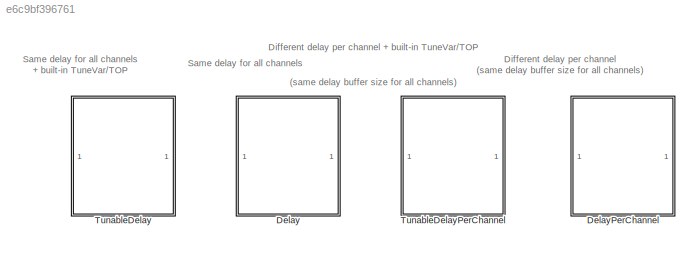
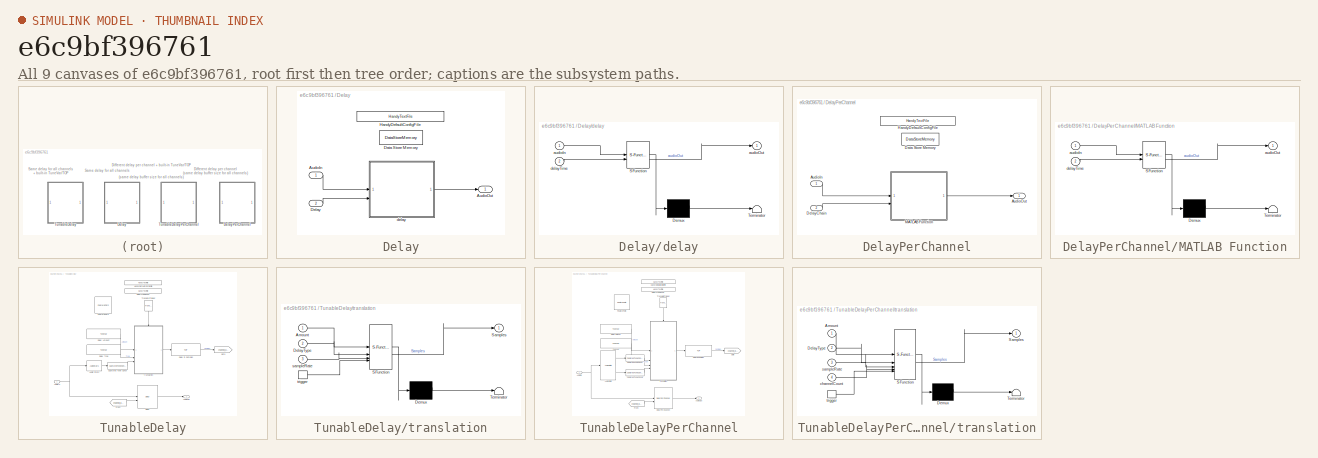
[diagram: thumbnail index - all 9 canvases of the model, root first then tree order]
MODEL slx_e6c9bf396761
KIND library
CONFIG AbsTol = auto
CONFIG EnableMultiTasking = off
CONFIG FixedStep = auto
CONFIG MaxStep = auto
CONFIG MinStep = auto
CONFIG RelTol = 1e-3
CONFIG SampleTimeConstraint = Unconstrained
CONFIG SolverName = VariableStepAuto
CONFIG StartTime = 0.0
CONFIG StopTime = 10.0
BLOCK [SubSystem] Delay
BLOCK [Inport] Delay/AudioIn
BLOCK [Outport] Delay/AudioOut
  VectorParamsAs1DForOutWhenUnconnected = off
BLOCK [DataStoreMemory] Delay/Data Store Memory
  DataStoreName = delayBuffer
  InitialValue = Config.DlgInitialState
  OutDataTypeStr = single
  ReadBeforeWriteMsg = warning
  ShowAdditionalParam = off
  SignalType = real
  WriteAfterReadMsg = warning
  WriteAfterWriteMsg = warning
BLOCK [Inport] Delay/Delay
  Port = 2
BLOCK [Reference] Delay/HandyDefaultConfigFile  REF=HandyTextFile/HandyTextFile
  SourceBlock = HandyTextFile/HandyTextFile
  SourceProductName = Bose Talaria
  SourceType = Talaria Handy Text File
BLOCK [SubSystem] Delay/delay
  ErrorFcn = Stateflow.Translate.translate
  PermitHierarchicalResolution = ExplicitOnly
  SFBlockType = MATLAB Function
  TreatAsAtomicUnit = on
BLOCK [Demux] Delay/delay/ Demux 
  Outputs = 1
BLOCK [S-Function] Delay/delay/ SFunction 
  EnableBusSupport = off
  FunctionName = sf_sfun
  Parameters = maxDelayTime
  PortCounts = [2 2]
  SFcnIsStateOwnerBlock = off
  SFunctionDeploymentMode = off
  Tag = Stateflow S-Function 3
BLOCK [Terminator] Delay/delay/ Terminator 
BLOCK [Inport] Delay/delay/audioIn
BLOCK [Outport] Delay/delay/audioOut
  VectorParamsAs1DForOutWhenUnconnected = off
BLOCK [Inport] Delay/delay/delayTime
  Port = 2
BLOCK [SubSystem] DelayPerChannel
BLOCK [Inport] DelayPerChannel/AudioIn
BLOCK [Outport] DelayPerChannel/AudioOut
  VectorParamsAs1DForOutWhenUnconnected = off
BLOCK [DataStoreMemory] DelayPerChannel/Data Store Memory
  DataStoreName = delayBuffer
  InitialValue = Config.DlgInitialState
  OutDataTypeStr = single
  ReadBeforeWriteMsg = warning
  ShowAdditionalParam = off
  SignalType = real
  WriteAfterReadMsg = warning
  WriteAfterWriteMsg = warning
BLOCK [Inport] DelayPerChannel/DelayChain
  Port = 2
BLOCK [Reference] DelayPerChannel/HandyDefaultConfigFile  REF=HandyTextFile/HandyTextFile
  SourceBlock = HandyTextFile/HandyTextFile
  SourceProductName = Bose Talaria
  SourceType = Talaria Handy Text File
BLOCK [SubSystem] DelayPerChannel/MATLAB Function
  ErrorFcn = Stateflow.Translate.translate
  PermitHierarchicalResolution = ExplicitOnly
  SFBlockType = MATLAB Function
  TreatAsAtomicUnit = on
BLOCK [Demux] DelayPerChannel/MATLAB Function/ Demux 
  Outputs = 1
BLOCK [S-Function] DelayPerChannel/MATLAB Function/ SFunction 
  EnableBusSupport = off
  FunctionName = sf_sfun
  Parameters = maxDelayTime
  PortCounts = [2 2]
  SFcnIsStateOwnerBlock = off
  SFunctionDeploymentMode = off
  Tag = Stateflow S-Function 5
BLOCK [Terminator] DelayPerChannel/MATLAB Function/ Terminator 
BLOCK [Inport] DelayPerChannel/MATLAB Function/audioIn
BLOCK [Outport] DelayPerChannel/MATLAB Function/audioOut
  VectorParamsAs1DForOutWhenUnconnected = off
BLOCK [Inport] DelayPerChannel/MATLAB Function/delayTime
  Port = 2
BLOCK [SubSystem] TunableDelay
BLOCK [Reference] TunableDelay/Audio Stats  REF=AudioStats/AudioStats
  SourceBlock = AudioStats/AudioStats
  SourceProductName = Bose Talaria
  SourceType = Talaria Audio Statistics
BLOCK [Inport] TunableDelay/AudioIn
BLOCK [Outport] TunableDelay/AudioOut
  VectorParamsAs1DForOutWhenUnconnected = off
BLOCK [Reference] TunableDelay/Captured Tune Const  REF=TuneVar/CapturedTuneConst
  SourceBlock = TuneVar/CapturedTuneConst
  SourceProductName = Bose Talaria
  SourceType = Talaria Captured Constant
BLOCK [Reference] TunableDelay/Delay  REF=$bdroot/Delay
  SourceBlock = $bdroot/Delay
  SourceType = Blocklib Delay
BLOCK [Reference] TunableDelay/Delay Amount  REF=TuneVar/TuneVar
  SourceBlock = TuneVar/TuneVar
  SourceProductName = Bose Talaria
  SourceType = Talaria Tune Variable
BLOCK [Reference] TunableDelay/Delay Type  REF=TuneVar/TuneVar
  Description = Indicates how to interpret the delay amount\n1 == InSamples\n2 == InMilliseconds\n(See DelayTypeEnum)
  SourceBlock = TuneVar/TuneVar
  SourceProductName = Bose Talaria
  SourceType = Talaria Tune Variable
BLOCK [Reference] TunableDelay/Delay in Samples  REF=TOP/TOP
  SourceBlock = TOP/TOP
  SourceProductName = Bose Talaria
  SourceType = Talaria Target Overlay Parameter
BLOCK [Reference] TunableDelay/DelayTypeEnum  REF=HandyTextFile/HandyTextFile
  SourceBlock = HandyTextFile/HandyTextFile
  SourceProductName = Bose Talaria
  SourceType = Talaria Handy Text File
BLOCK [Reference] TunableDelay/FeaturePath  REF=FeaturePath/FeaturePath
  SourceBlock = FeaturePath/FeaturePath
  SourceProductName = Bose Talaria
  SourceType = Talaria Feature Path
BLOCK [From] TunableDelay/From
  GotoTag = channel_delay
BLOCK [Goto] TunableDelay/Goto
  GotoTag = channel_delay
BLOCK [Reference] TunableDelay/HandyDefaultConfigFile  REF=HandyTextFile/HandyTextFile
  SourceBlock = HandyTextFile/HandyTextFile
  SourceProductName = Bose Talaria
  SourceType = Talaria Handy Text File
BLOCK [Reference] TunableDelay/TranslateTrigger  REF=TuneVar/TranslateTrigger
  NameLocation = left
  SourceBlock = TuneVar/TranslateTrigger
  SourceProductName = Bose Talaria
  SourceType = Talaria Translate Trigger
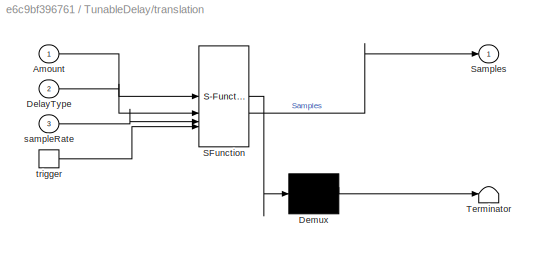
BLOCK [SubSystem] TunableDelay/translation
  ErrorFcn = Stateflow.Translate.translate
  PermitHierarchicalResolution = ExplicitOnly
  SFBlockType = MATLAB Function
  TreatAsAtomicUnit = on
BLOCK [Demux] TunableDelay/translation/ Demux 
  Outputs = 1
BLOCK [S-Function] TunableDelay/translation/ SFunction 
  EnableBusSupport = off
  FunctionName = sf_sfun
  Parameters = maxDelayTime
  PortCounts = [4 2]
  SFcnIsStateOwnerBlock = off
  SFunctionDeploymentMode = off
  Tag = Stateflow S-Function 1
BLOCK [Terminator] TunableDelay/translation/ Terminator 
BLOCK [Inport] TunableDelay/translation/Amount
BLOCK [Inport] TunableDelay/translation/DelayType
  Port = 2
BLOCK [Outport] TunableDelay/translation/Samples
  VectorParamsAs1DForOutWhenUnconnected = off
BLOCK [Inport] TunableDelay/translation/sampleRate
  Port = 3
BLOCK [TriggerPort] TunableDelay/translation/trigger
  ShowOutputPort = on
  StatesWhenEnabling = held
  TriggerType = function-call
  VariantControl = Variant
BLOCK [SubSystem] TunableDelayPerChannel
BLOCK [Reference] TunableDelayPerChannel/Audio Stats  REF=AudioStats/AudioStats
  SourceBlock = AudioStats/AudioStats
  SourceProductName = Bose Talaria
  SourceType = Talaria Audio Statistics
BLOCK [Inport] TunableDelayPerChannel/AudioIn
BLOCK [Outport] TunableDelayPerChannel/AudioOut
  VectorParamsAs1DForOutWhenUnconnected = off
BLOCK [Reference] TunableDelayPerChannel/Captured Tune Const  REF=TuneVar/CapturedTuneConst
  SourceBlock = TuneVar/CapturedTuneConst
  SourceProductName = Bose Talaria
  SourceType = Talaria Captured Constant
BLOCK [Reference] TunableDelayPerChannel/Captured Tune Const1  REF=TuneVar/CapturedTuneConst
  SourceBlock = TuneVar/CapturedTuneConst
  SourceProductName = Bose Talaria
  SourceType = Talaria Captured Constant
BLOCK [Reference] TunableDelayPerChannel/Delay Amount  REF=TuneVar/TuneVar
  SourceBlock = TuneVar/TuneVar
  SourceProductName = Bose Talaria
  SourceType = Talaria Tune Variable
BLOCK [Reference] TunableDelayPerChannel/Delay in Samples  REF=TOP/TOP
  SourceBlock = TOP/TOP
  SourceProductName = Bose Talaria
  SourceType = Talaria Target Overlay Parameter
BLOCK [Reference] TunableDelayPerChannel/DelayPerChannel  REF=$bdroot/DelayPerChannel
  SourceBlock = $bdroot/DelayPerChannel
  SourceType = Blocklib DelayPerChannel
BLOCK [Reference] TunableDelayPerChannel/DelayTypeEnum  REF=HandyTextFile/HandyTextFile
  SourceBlock = HandyTextFile/HandyTextFile
  SourceProductName = Bose Talaria
  SourceType = Talaria Handy Text File
BLOCK [Reference] TunableDelayPerChannel/FeaturePath  REF=FeaturePath/FeaturePath
  SourceBlock = FeaturePath/FeaturePath
  SourceProductName = Bose Talaria
  SourceType = Talaria Feature Path
BLOCK [From] TunableDelayPerChannel/From
  GotoTag = channel_delay
BLOCK [Goto] TunableDelayPerChannel/Goto
  GotoTag = channel_delay
BLOCK [Reference] TunableDelayPerChannel/HandyDefaultConfigFile  REF=HandyTextFile/HandyTextFile
  SourceBlock = HandyTextFile/HandyTextFile
  SourceProductName = Bose Talaria
  SourceType = Talaria Handy Text File
BLOCK [Reference] TunableDelayPerChannel/TranslateTrigger  REF=TuneVar/TranslateTrigger
  NameLocation = left
  SourceBlock = TuneVar/TranslateTrigger
  SourceProductName = Bose Talaria
  SourceType = Talaria Translate Trigger
BLOCK [Reference] TunableDelayPerChannel/TuneVar  REF=TuneVar/TuneVar
  SourceBlock = TuneVar/TuneVar
  SourceProductName = Bose Talaria
  SourceType = Talaria Tune Variable
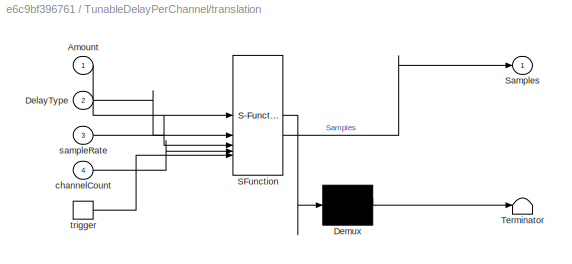
BLOCK [SubSystem] TunableDelayPerChannel/translation
  ErrorFcn = Stateflow.Translate.translate
  PermitHierarchicalResolution = ExplicitOnly
  SFBlockType = MATLAB Function
  TreatAsAtomicUnit = on
BLOCK [Demux] TunableDelayPerChannel/translation/ Demux 
  Outputs = 1
BLOCK [S-Function] TunableDelayPerChannel/translation/ SFunction 
  EnableBusSupport = off
  FunctionName = sf_sfun
  Parameters = maxDelayTime
  PortCounts = [5 2]
  SFcnIsStateOwnerBlock = off
  SFunctionDeploymentMode = off
  Tag = Stateflow S-Function 6
BLOCK [Terminator] TunableDelayPerChannel/translation/ Terminator 
BLOCK [Inport] TunableDelayPerChannel/translation/Amount
BLOCK [Inport] TunableDelayPerChannel/translation/DelayType
  Port = 2
BLOCK [Outport] TunableDelayPerChannel/translation/Samples
  VectorParamsAs1DForOutWhenUnconnected = off
BLOCK [Inport] TunableDelayPerChannel/translation/channelCount
  Port = 4
BLOCK [Inport] TunableDelayPerChannel/translation/sampleRate
  Port = 3
BLOCK [TriggerPort] TunableDelayPerChannel/translation/trigger
  ShowOutputPort = on
  StatesWhenEnabling = held
  TriggerType = function-call
  VariantControl = Variant
ANNOTATION (root): Different delay per channel (same delay buffer size for all channels)
ANNOTATION (root): Different delay per channel + built-in TuneVar/TOP (same delay buffer size for all channels)
ANNOTATION (root): Same delay for all channels + built-in TuneVar/TOP
ANNOTATION (root): Same delay for all channels
CHART TunableDelay/translation states=1 transitions=1
  STATE_LABEL 'eML_blk_kernel()'
  STATE_LABEL "SCRIPT:\nfunction Samples  = fcn(Amount, DelayType, sampleRate, maxDelayTime)\n\nif (DelayType.Value == DelayTypeEnum.InSamples) % delay in samples\n    Samples = int32(round(Amount.Value));\nelse % delay in milliseconds\n    Samples = int32(round(Amount.Value * 1e-3 * sampleRate));\nend\n% Check if the delay is greater than the maximum specified\nif Samples > maxDelayTime\n    TranslateError('Delay amount ...<+49ch>"
CHART Delay/delay states=1 transitions=1
  STATE_LABEL 'eML_blk_kernel()'
  STATE_LABEL 'SCRIPT:\nfunction audioOut = delay(audioIn, delayTime, maxDelayTime)\n\n% Our delayline lives in global variable. We treat as a circular buffer. \nglobal delayBuffer\n\n% figure out the frame size and channel count\n[frameSize, numChannels] = size(audioIn);\nframeSize = int32(frameSize);\nstateLen = int32(maxDelayTime)+frameSize;\ntotalLen = int32(stateLen * numChannels);\ndelayTime = int32(delayTime);\naudio...<+1595ch>'
CHART DelayPerChannel/MATLAB Function states=1 transitions=1
  STATE_LABEL 'eML_blk_kernel()'
  STATE_LABEL 'SCRIPT:\nfunction audioOut = delay(audioIn, delayTime, maxDelayTime)\n\n% Our delayline lives in global variable. We treat as a circular buffer. \nglobal delayBuffer\n\n% figure out the frame size and channel count\n[frameSize, numChannels] = size(audioIn);\nframeSize = int32(frameSize);\nstateLen = int32(maxDelayTime)+frameSize;\ntotalLen = int32(stateLen * numChannels);\ndelayTime = int32(delayTime);\naudio...<+1607ch>'
CHART TunableDelayPerChannel/translation states=1 transitions=1
  STATE_LABEL 'eML_blk_kernel()'
  STATE_LABEL "SCRIPT:\nfunction Samples  = fcn(Amount, DelayType, sampleRate, channelCount, maxDelayTime)\n\n% validate channel count in TuneVar against Delay input\nif length(Amount.Value) ~= channelCount\n    TranslateError('Mismatch between number of delay tune values and channel count');\nend\n\nif (DelayType.Value == DelayTypeEnum.InSamples) % delay in samples\n    Samples = int32(round(Amount.Value));\nelse % delay...<+255ch>"
CHART  states=0 transitions=0
CHART  states=0 transitions=0
CHART  states=0 transitions=0
CHART  states=0 transitions=0
